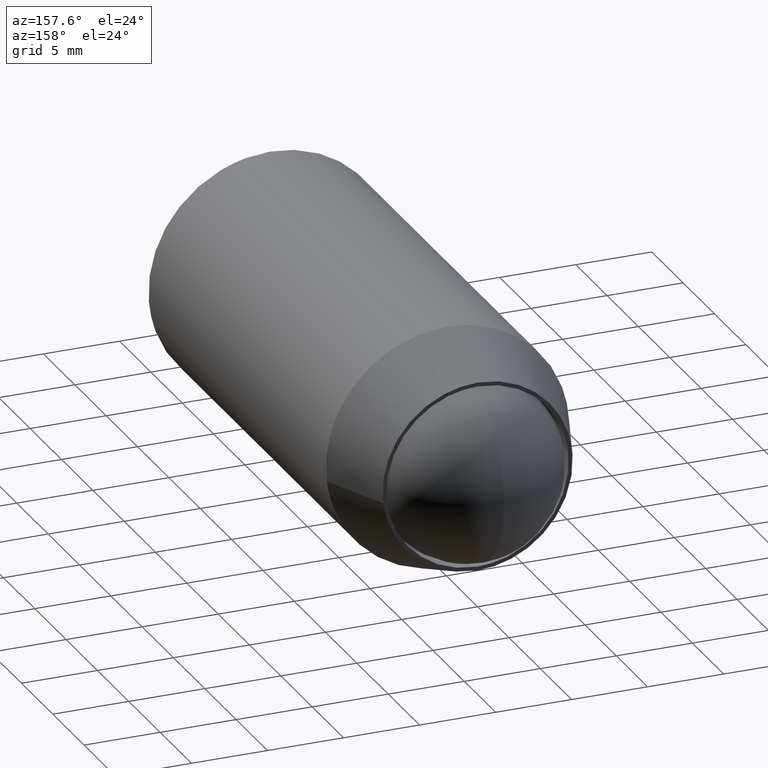
[diagram: clean part render]
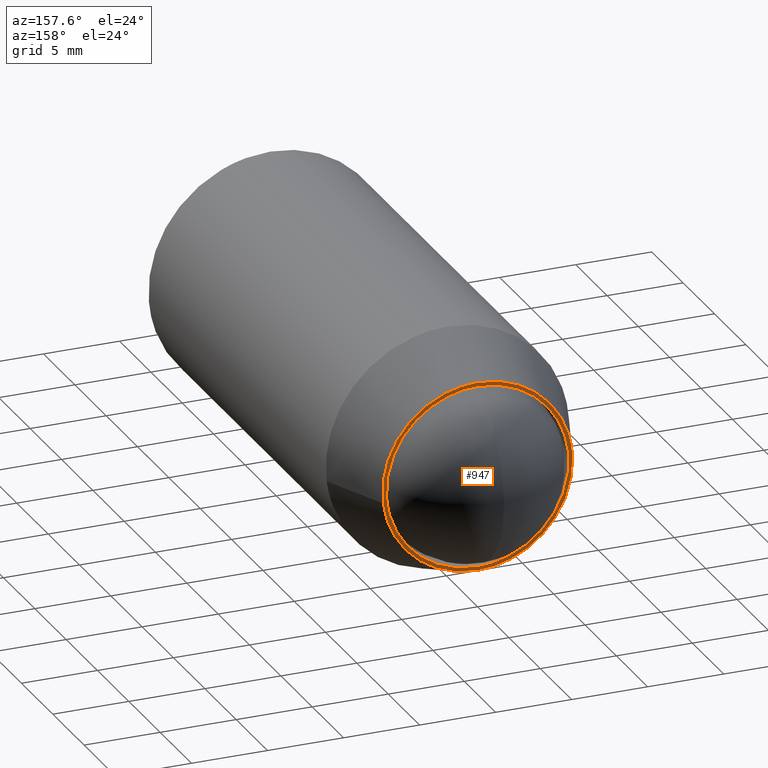
[diagram: same view with one face highlighted and labeled with its STEP entity id]
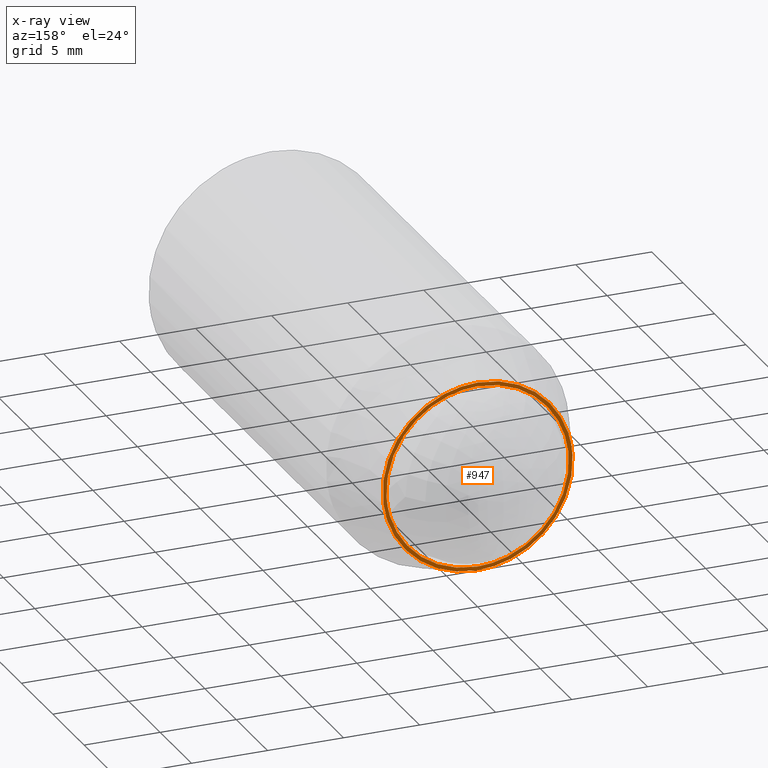
[diagram: x-ray of the same camera — body ghosted, the highlighted face saturated]
A machine part, auxiliary view. The second image highlights one B-rep face of the part: STEP entity #947.
The next image is the same camera in x-ray: the body ghosted, the highlighted face saturated — about 0% of this face is hidden behind the body in this view.
In plain terms, the highlighted face is a freeform B-spline surface patch.
Its self-contained STEP definition (entity closure, byte-faithful):
#104=CARTESIAN_POINT('',(5.988809329659173,-2.220446E-016,-0.366282422331791));
#105=VERTEX_POINT('',#104);
#111=CARTESIAN_POINT('',(0.0,0.0,-6.0));
#112=VERTEX_POINT('',#111);
#113=CARTESIAN_POINT('',(0.0,0.0,-6.0));
#114=CARTESIAN_POINT('',(5.644244724667827,0.0,-6.0));
#115=CARTESIAN_POINT('',(5.988809329659173,-2.220446E-016,-0.366282422331791));
#123=(BOUNDED_CURVE()B_SPLINE_CURVE(2,(#113,#114,#115),.UNSPECIFIED.,.F.,.U.)B_SPLINE_CURVE_WITH_KNOTS((3,3),(0.500000000000000,0.739333216212187),.UNSPECIFIED.)CURVE()GEOMETRIC_REPRESENTATION_ITEM()RATIONAL_B_SPLINE_CURVE((1.0,0.719603695738547,0.976072585980330))REPRESENTATION_ITEM(''));
#124=EDGE_CURVE('',#112,#105,#123,.T.);
#126=CARTESIAN_POINT('',(-5.958057458705271,-2.271543E-016,0.708202879660905));
#127=VERTEX_POINT('',#126);
#128=CARTESIAN_POINT('',(-5.958057458705271,-2.271543E-016,0.708202879660905));
#129=CARTESIAN_POINT('',(-6.0,0.0,0.355343440407393));
#130=CARTESIAN_POINT('',(-6.0,0.0,0.0));
#131=CARTESIAN_POINT('',(-6.0,0.0,-6.0));
#132=CARTESIAN_POINT('',(0.0,0.0,-6.0));
#140=(BOUNDED_CURVE()B_SPLINE_CURVE(2,(#128,#129,#130,#131,#132),.UNSPECIFIED.,.F.,.U.)B_SPLINE_CURVE_WITH_KNOTS((3,2,3),(0.229562545231554,0.250000000000000,0.500000000000000),.UNSPECIFIED.)CURVE()GEOMETRIC_REPRESENTATION_ITEM()RATIONAL_B_SPLINE_CURVE((0.956026894754051,0.976056032354062,1.0,0.707106781186548,1.0))REPRESENTATION_ITEM(''));
#141=EDGE_CURVE('',#127,#112,#140,.T.);
#185=CARTESIAN_POINT('',(0.0,0.0,6.0));
#186=VERTEX_POINT('',#185);
#187=CARTESIAN_POINT('',(0.0,0.0,6.0));
#188=CARTESIAN_POINT('',(-5.329049432989357,0.0,6.0));
#189=CARTESIAN_POINT('',(-5.958057458705271,-2.271543E-016,0.708202879660905));
#197=(BOUNDED_CURVE()B_SPLINE_CURVE(2,(#187,#188,#189),.UNSPECIFIED.,.F.,.U.)B_SPLINE_CURVE_WITH_KNOTS((3,3),(0.0,0.229562545231554),.UNSPECIFIED.)CURVE()GEOMETRIC_REPRESENTATION_ITEM()RATIONAL_B_SPLINE_CURVE((1.0,0.731050748832486,0.956026894754051))REPRESENTATION_ITEM(''));
#198=EDGE_CURVE('',#186,#127,#197,.T.);
#200=CARTESIAN_POINT('',(5.988809329659173,-2.220446E-016,-0.366282422331791));
#201=CARTESIAN_POINT('',(6.0,0.0,-0.183312159995326));
#202=CARTESIAN_POINT('',(6.0,0.0,0.0));
#203=CARTESIAN_POINT('',(6.0,0.0,6.0));
#204=CARTESIAN_POINT('',(0.0,0.0,6.0));
#212=(BOUNDED_CURVE()B_SPLINE_CURVE(2,(#200,#201,#202,#203,#204),.UNSPECIFIED.,.F.,.U.)B_SPLINE_CURVE_WITH_KNOTS((3,2,3),(0.739333216212187,0.750000000000000,1.0),.UNSPECIFIED.)CURVE()GEOMETRIC_REPRESENTATION_ITEM()RATIONAL_B_SPLINE_CURVE((0.976072585980330,0.987503085448001,1.0,0.707106781186548,1.0))REPRESENTATION_ITEM(''));
#213=EDGE_CURVE('',#105,#186,#212,.T.);
#611=CARTESIAN_POINT('',(6.206309539772297,-2.303983E-012,-0.737713966617037));
#612=VERTEX_POINT('',#611);
#613=CARTESIAN_POINT('',(0.0,0.0,6.249999999999999));
#614=VERTEX_POINT('',#613);
#615=CARTESIAN_POINT('',(6.206309539772297,-2.303983E-012,-0.737713966617037));
#616=CARTESIAN_POINT('',(6.250000000000000,0.0,-0.370150747836765));
#617=CARTESIAN_POINT('',(6.250000000000000,0.0,-1.291960E-015));
#618=CARTESIAN_POINT('',(6.249999999999999,0.0,6.249999999999999));
#619=CARTESIAN_POINT('',(0.0,0.0,6.249999999999999));
#627=(BOUNDED_CURVE()B_SPLINE_CURVE(2,(#615,#616,#617,#618,#619),.UNSPECIFIED.,.F.,.U.)B_SPLINE_CURVE_WITH_KNOTS((3,2,3),(0.229562473514980,0.250000000000000,0.500000000000000),.UNSPECIFIED.)CURVE()GEOMETRIC_REPRESENTATION_ITEM()RATIONAL_B_SPLINE_CURVE((0.956026754186584,0.976055948332869,1.0,0.707106781186547,1.0))REPRESENTATION_ITEM(''));
#628=EDGE_CURVE('',#612,#614,#627,.T.);
#630=CARTESIAN_POINT('',(-6.238341227741394,0.000004335775099,0.381548162198238));
#631=VERTEX_POINT('',#630);
#632=CARTESIAN_POINT('',(0.0,0.0,6.249999999999999));
#633=CARTESIAN_POINT('',(-5.879416958934103,0.000002167887550,6.249999951830448));
#634=CARTESIAN_POINT('',(-6.238341227741394,0.000004335775099,0.381548162198238));
#642=(BOUNDED_CURVE()B_SPLINE_CURVE(2,(#632,#633,#634),.UNSPECIFIED.,.F.,.U.)B_SPLINE_CURVE_WITH_KNOTS((3,3),(0.500000000000000,0.739333103678208),.UNSPECIFIED.)CURVE()GEOMETRIC_REPRESENTATION_ITEM()RATIONAL_B_SPLINE_CURVE((1.0,0.719603827580304,0.976072344798174))REPRESENTATION_ITEM(''));
#643=EDGE_CURVE('',#614,#631,#642,.T.);
#678=CARTESIAN_POINT('',(0.0,0.0,-6.250000000000001));
#679=VERTEX_POINT('',#678);
#680=CARTESIAN_POINT('',(0.0,0.0,-6.250000000000001));
#681=CARTESIAN_POINT('',(5.551090787174074,0.0,-6.250000000000002));
#682=CARTESIAN_POINT('',(6.206309539772298,-2.303983E-012,-0.737713966617037));
#690=(BOUNDED_CURVE()B_SPLINE_CURVE(2,(#680,#681,#682),.UNSPECIFIED.,.F.,.U.)B_SPLINE_CURVE_WITH_KNOTS((3,3),(0.0,0.229562473514980),.UNSPECIFIED.)CURVE()GEOMETRIC_REPRESENTATION_ITEM()RATIONAL_B_SPLINE_CURVE((1.0,0.731050832853678,0.956026754186584))REPRESENTATION_ITEM(''));
#691=EDGE_CURVE('',#679,#612,#690,.T.);
#698=CARTESIAN_POINT('',(-6.238341227741394,0.000004335775099,0.381548162198238));
#699=CARTESIAN_POINT('',(-6.249998447483940,0.000004273468261,0.190952111714892));
#700=CARTESIAN_POINT('',(-6.249998471546235,0.000004207234195,-0.000000093482978));
#701=CARTESIAN_POINT('',(-6.249999259122045,0.000002039346645,-6.250000045313428));
#702=CARTESIAN_POINT('',(0.0,0.0,-6.250000000000001));
#710=(BOUNDED_CURVE()B_SPLINE_CURVE(2,(#698,#699,#700,#701,#702),.UNSPECIFIED.,.F.,.U.)B_SPLINE_CURVE_WITH_KNOTS((3,2,3),(0.739333103678208,0.750000000000000,1.0),.UNSPECIFIED.)CURVE()GEOMETRIC_REPRESENTATION_ITEM()RATIONAL_B_SPLINE_CURVE((0.976072344798174,0.987502953606244,1.0,0.707106781186547,1.0))REPRESENTATION_ITEM(''));
#711=EDGE_CURVE('',#631,#679,#710,.T.);
#930=CARTESIAN_POINT('',(-6.874221213553082,0.0,-6.874374975772576));
#931=CARTESIAN_POINT('',(-6.874221213553082,0.0,6.874375311048700));
#932=CARTESIAN_POINT('',(6.874261223170889,0.0,-6.874374975772576));
#933=CARTESIAN_POINT('',(6.874261223170889,0.0,6.874375311048700));
#934=B_SPLINE_SURFACE_WITH_KNOTS('',1,1,((#930,#932),(#931,#933)),.UNSPECIFIED.,.F.,.F.,.U.,(2,2),(2,2),(0.0,13.748750286821281),(0.0,13.748482436723970),.UNSPECIFIED.);
#935=ORIENTED_EDGE('',*,*,#711,.F.);
#936=ORIENTED_EDGE('',*,*,#643,.F.);
#937=ORIENTED_EDGE('',*,*,#628,.F.);
#938=ORIENTED_EDGE('',*,*,#691,.F.);
#939=EDGE_LOOP('',(#935,#936,#937,#938));
#940=FACE_OUTER_BOUND('',#939,.T.);
#941=ORIENTED_EDGE('',*,*,#124,.T.);
#942=ORIENTED_EDGE('',*,*,#213,.T.);
#943=ORIENTED_EDGE('',*,*,#198,.T.);
#944=ORIENTED_EDGE('',*,*,#141,.T.);
#945=EDGE_LOOP('',(#941,#942,#943,#944));
#946=FACE_BOUND('',#945,.T.);
#947=ADVANCED_FACE('',(#940,#946),#934,.T.);